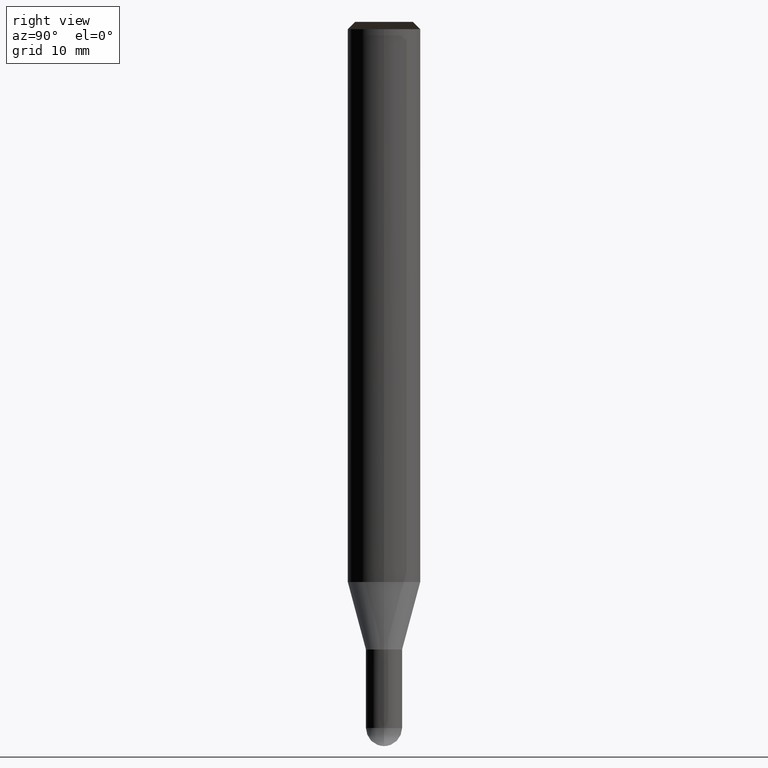
[diagram: clean part render]
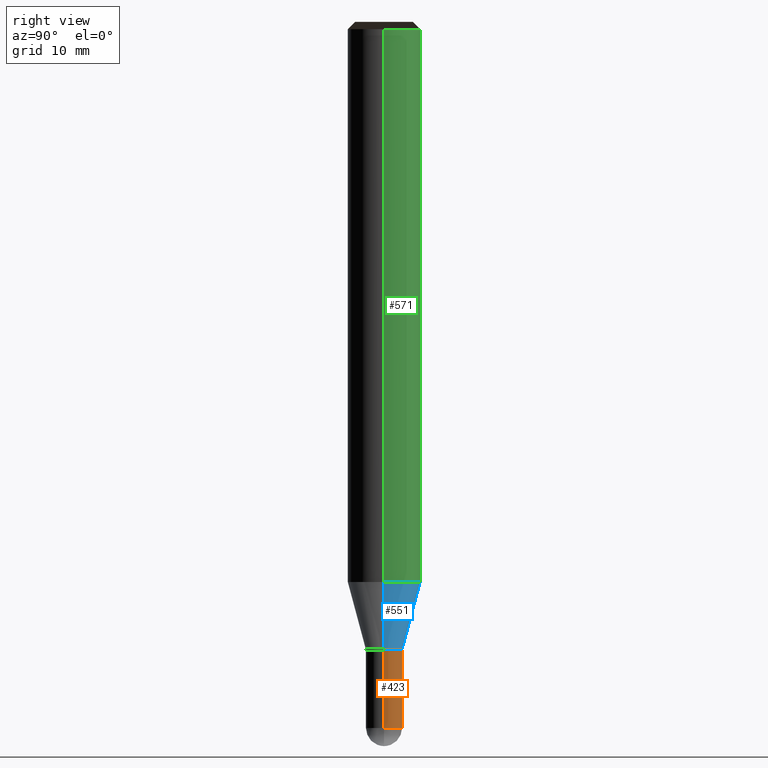
[diagram: same view with three faces highlighted in distinct colors, each labeled with its STEP entity id]
A machine part, right view with three faces highlighted in distinct colors.
Their STEP definitions:

[orange] entity #423 — the highlighted face is a freeform B-spline surface patch.
#330=CARTESIAN_POINT('',(1.5,0.0,-12.099));
#331=CARTESIAN_POINT('',(1.5,1.5,-12.099));
#332=CARTESIAN_POINT('',(0.0,1.5,-12.099));
#333=CARTESIAN_POINT('',(-1.5,1.5,-12.099));
#334=CARTESIAN_POINT('',(-1.5,0.0,-12.099));
#335=CARTESIAN_POINT('',(1.5,0.0,-5.599));
#336=CARTESIAN_POINT('',(1.5,1.5,-5.599));
#337=CARTESIAN_POINT('',(0.0,1.5,-5.599));
#338=CARTESIAN_POINT('',(-1.5,1.5,-5.599));
#339=CARTESIAN_POINT('',(-1.5,0.0,-5.599));
#404=(
BOUNDED_SURFACE()
B_SPLINE_SURFACE(1,2,(
(#330,#331,#332,#333,#334),
(#335,#336,#337,#338,#339)
), .UNSPECIFIED.,.F.,.F.,.F.)
B_SPLINE_SURFACE_WITH_KNOTS((2,2),(3,2,3),(
0.0,1.0),(
0.0,0.5,1.0), .UNSPECIFIED.)
GEOMETRIC_REPRESENTATION_ITEM()
RATIONAL_B_SPLINE_SURFACE(((1.0,0.707106781187,1.0,0.707106781187,1.0),
(1.0,0.707106781187,1.0,0.707106781187,1.0)
))
REPRESENTATION_ITEM('')
SURFACE()
);
#405=(
BOUNDED_CURVE()
B_SPLINE_CURVE(2,(#335,#336,#337,#338,#339),.UNSPECIFIED.,.F.,.F.)
B_SPLINE_CURVE_WITH_KNOTS((3,2,3),
(0.0,0.5,1.0),.UNSPECIFIED.)
CURVE()
GEOMETRIC_REPRESENTATION_ITEM()
RATIONAL_B_SPLINE_CURVE((1.0,0.707106781187,1.0,0.707106781187,1.0))
REPRESENTATION_ITEM('')
);
#406=(
BOUNDED_CURVE()
B_SPLINE_CURVE(1,(#339,#334),.UNSPECIFIED.,.F.,.F.)
B_SPLINE_CURVE_WITH_KNOTS((2,2),
(0.0,1.0),.UNSPECIFIED.)
CURVE()
GEOMETRIC_REPRESENTATION_ITEM()
RATIONAL_B_SPLINE_CURVE((1.0,1.0))
REPRESENTATION_ITEM('')
);
#407=(
BOUNDED_CURVE()
B_SPLINE_CURVE(2,(#334,#333,#332,#331,#330),.UNSPECIFIED.,.F.,.F.)
B_SPLINE_CURVE_WITH_KNOTS((3,2,3),
(0.0,0.5,1.0),.UNSPECIFIED.)
CURVE()
GEOMETRIC_REPRESENTATION_ITEM()
RATIONAL_B_SPLINE_CURVE((1.0,0.707106781187,1.0,0.707106781187,1.0))
REPRESENTATION_ITEM('')
);
#408=(
BOUNDED_CURVE()
B_SPLINE_CURVE(1,(#330,#335),.UNSPECIFIED.,.F.,.F.)
B_SPLINE_CURVE_WITH_KNOTS((2,2),
(0.0,1.0),.UNSPECIFIED.)
CURVE()
GEOMETRIC_REPRESENTATION_ITEM()
RATIONAL_B_SPLINE_CURVE((1.0,1.0))
REPRESENTATION_ITEM('')
);
#409=VERTEX_POINT('',#330);
#410=VERTEX_POINT('',#334);
#411=VERTEX_POINT('',#335);
#412=VERTEX_POINT('',#339);
#413=EDGE_CURVE('',#411,#412,#405,.T.);
#414=EDGE_CURVE('',#412,#410,#406,.T.);
#415=EDGE_CURVE('',#410,#409,#407,.T.);
#416=EDGE_CURVE('',#409,#411,#408,.T.);
#417=ORIENTED_EDGE('',*,*,#413,.T.);
#418=ORIENTED_EDGE('',*,*,#414,.T.);
#419=ORIENTED_EDGE('',*,*,#415,.T.);
#420=ORIENTED_EDGE('',*,*,#416,.T.);
#421=EDGE_LOOP('',(#417,#418,#419,#420));
#422=FACE_OUTER_BOUND('',#421,.T.);
#423=ADVANCED_FACE('',(#422),#404,.T.);

[blue] entity #551 — the highlighted face is a freeform B-spline surface patch.
#350=CARTESIAN_POINT('',(1.5,0.0,-5.598076211353));
#351=CARTESIAN_POINT('',(1.5,1.5,-5.598076211353));
#352=CARTESIAN_POINT('',(0.0,1.5,-5.598076211353));
#353=CARTESIAN_POINT('',(-1.5,1.5,-5.598076211353));
#354=CARTESIAN_POINT('',(-1.5,0.0,-5.598076211353));
#355=CARTESIAN_POINT('',(3.0,0.0,-0.0));
#356=CARTESIAN_POINT('',(3.0,3.0,-0.0));
#357=CARTESIAN_POINT('',(0.0,3.0,-0.0));
#358=CARTESIAN_POINT('',(-3.0,3.0,-0.0));
#359=CARTESIAN_POINT('',(-3.0,0.0,-0.0));
#532=(
BOUNDED_SURFACE()
B_SPLINE_SURFACE(1,2,(
(#350,#351,#352,#353,#354),
(#355,#356,#357,#358,#359)
), .UNSPECIFIED.,.F.,.F.,.F.)
B_SPLINE_SURFACE_WITH_KNOTS((2,2),(3,2,3),(
0.0,1.0),(
0.0,0.5,1.0), .UNSPECIFIED.)
GEOMETRIC_REPRESENTATION_ITEM()
RATIONAL_B_SPLINE_SURFACE(((1.0,0.707106781187,1.0,0.707106781187,1.0),
(1.0,0.707106781187,1.0,0.707106781187,1.0)
))
REPRESENTATION_ITEM('')
SURFACE()
);
#533=(
BOUNDED_CURVE()
B_SPLINE_CURVE(2,(#355,#356,#357,#358,#359),.UNSPECIFIED.,.F.,.F.)
B_SPLINE_CURVE_WITH_KNOTS((3,2,3),
(0.0,0.5,1.0),.UNSPECIFIED.)
CURVE()
GEOMETRIC_REPRESENTATION_ITEM()
RATIONAL_B_SPLINE_CURVE((1.0,0.707106781187,1.0,0.707106781187,1.0))
REPRESENTATION_ITEM('')
);
#534=(
BOUNDED_CURVE()
B_SPLINE_CURVE(1,(#359,#354),.UNSPECIFIED.,.F.,.F.)
B_SPLINE_CURVE_WITH_KNOTS((2,2),
(0.0,1.0),.UNSPECIFIED.)
CURVE()
GEOMETRIC_REPRESENTATION_ITEM()
RATIONAL_B_SPLINE_CURVE((1.0,1.0))
REPRESENTATION_ITEM('')
);
#535=(
BOUNDED_CURVE()
B_SPLINE_CURVE(2,(#354,#353,#352,#351,#350),.UNSPECIFIED.,.F.,.F.)
B_SPLINE_CURVE_WITH_KNOTS((3,2,3),
(0.0,0.5,1.0),.UNSPECIFIED.)
CURVE()
GEOMETRIC_REPRESENTATION_ITEM()
RATIONAL_B_SPLINE_CURVE((1.0,0.707106781187,1.0,0.707106781187,1.0))
REPRESENTATION_ITEM('')
);
#536=(
BOUNDED_CURVE()
B_SPLINE_CURVE(1,(#350,#355),.UNSPECIFIED.,.F.,.F.)
B_SPLINE_CURVE_WITH_KNOTS((2,2),
(0.0,1.0),.UNSPECIFIED.)
CURVE()
GEOMETRIC_REPRESENTATION_ITEM()
RATIONAL_B_SPLINE_CURVE((1.0,1.0))
REPRESENTATION_ITEM('')
);
#537=VERTEX_POINT('',#350);
#538=VERTEX_POINT('',#354);
#539=VERTEX_POINT('',#355);
#540=VERTEX_POINT('',#359);
#541=EDGE_CURVE('',#539,#540,#533,.T.);
#542=EDGE_CURVE('',#540,#538,#534,.T.);
#543=EDGE_CURVE('',#538,#537,#535,.T.);
#544=EDGE_CURVE('',#537,#539,#536,.T.);
#545=ORIENTED_EDGE('',*,*,#541,.T.);
#546=ORIENTED_EDGE('',*,*,#542,.T.);
#547=ORIENTED_EDGE('',*,*,#543,.T.);
#548=ORIENTED_EDGE('',*,*,#544,.T.);
#549=EDGE_LOOP('',(#545,#546,#547,#548));
#550=FACE_OUTER_BOUND('',#549,.T.);
#551=ADVANCED_FACE('',(#550),#532,.T.);

[green] entity #571 — the highlighted face is a freeform B-spline surface patch.
#355=CARTESIAN_POINT('',(3.0,0.0,-0.0));
#356=CARTESIAN_POINT('',(3.0,3.0,-0.0));
#357=CARTESIAN_POINT('',(0.0,3.0,-0.0));
#358=CARTESIAN_POINT('',(-3.0,3.0,-0.0));
#359=CARTESIAN_POINT('',(-3.0,0.0,-0.0));
#360=CARTESIAN_POINT('',(3.0,0.0,45.801));
#361=CARTESIAN_POINT('',(3.0,3.0,45.801));
#362=CARTESIAN_POINT('',(0.0,3.0,45.801));
#363=CARTESIAN_POINT('',(-3.0,3.0,45.801));
#364=CARTESIAN_POINT('',(-3.0,0.0,45.801));
#552=(
BOUNDED_SURFACE()
B_SPLINE_SURFACE(1,2,(
(#355,#356,#357,#358,#359),
(#360,#361,#362,#363,#364)
), .UNSPECIFIED.,.F.,.F.,.F.)
B_SPLINE_SURFACE_WITH_KNOTS((2,2),(3,2,3),(
0.0,1.0),(
0.0,0.5,1.0), .UNSPECIFIED.)
GEOMETRIC_REPRESENTATION_ITEM()
RATIONAL_B_SPLINE_SURFACE(((1.0,0.707106781187,1.0,0.707106781187,1.0),
(1.0,0.707106781187,1.0,0.707106781187,1.0)
))
REPRESENTATION_ITEM('')
SURFACE()
);
#553=(
BOUNDED_CURVE()
B_SPLINE_CURVE(2,(#360,#361,#362,#363,#364),.UNSPECIFIED.,.F.,.F.)
B_SPLINE_CURVE_WITH_KNOTS((3,2,3),
(0.0,0.5,1.0),.UNSPECIFIED.)
CURVE()
GEOMETRIC_REPRESENTATION_ITEM()
RATIONAL_B_SPLINE_CURVE((1.0,0.707106781187,1.0,0.707106781187,1.0))
REPRESENTATION_ITEM('')
);
#554=(
BOUNDED_CURVE()
B_SPLINE_CURVE(1,(#364,#359),.UNSPECIFIED.,.F.,.F.)
B_SPLINE_CURVE_WITH_KNOTS((2,2),
(0.0,1.0),.UNSPECIFIED.)
CURVE()
GEOMETRIC_REPRESENTATION_ITEM()
RATIONAL_B_SPLINE_CURVE((1.0,1.0))
REPRESENTATION_ITEM('')
);
#555=(
BOUNDED_CURVE()
B_SPLINE_CURVE(2,(#359,#358,#357,#356,#355),.UNSPECIFIED.,.F.,.F.)
B_SPLINE_CURVE_WITH_KNOTS((3,2,3),
(0.0,0.5,1.0),.UNSPECIFIED.)
CURVE()
GEOMETRIC_REPRESENTATION_ITEM()
RATIONAL_B_SPLINE_CURVE((1.0,0.707106781187,1.0,0.707106781187,1.0))
REPRESENTATION_ITEM('')
);
#556=(
BOUNDED_CURVE()
B_SPLINE_CURVE(1,(#355,#360),.UNSPECIFIED.,.F.,.F.)
B_SPLINE_CURVE_WITH_KNOTS((2,2),
(0.0,1.0),.UNSPECIFIED.)
CURVE()
GEOMETRIC_REPRESENTATION_ITEM()
RATIONAL_B_SPLINE_CURVE((1.0,1.0))
REPRESENTATION_ITEM('')
);
#557=VERTEX_POINT('',#355);
#558=VERTEX_POINT('',#359);
#559=VERTEX_POINT('',#360);
#560=VERTEX_POINT('',#364);
#561=EDGE_CURVE('',#559,#560,#553,.T.);
#562=EDGE_CURVE('',#560,#558,#554,.T.);
#563=EDGE_CURVE('',#558,#557,#555,.T.);
#564=EDGE_CURVE('',#557,#559,#556,.T.);
#565=ORIENTED_EDGE('',*,*,#561,.T.);
#566=ORIENTED_EDGE('',*,*,#562,.T.);
#567=ORIENTED_EDGE('',*,*,#563,.T.);
#568=ORIENTED_EDGE('',*,*,#564,.T.);
#569=EDGE_LOOP('',(#565,#566,#567,#568));
#570=FACE_OUTER_BOUND('',#569,.T.);
#571=ADVANCED_FACE('',(#570),#552,.T.);